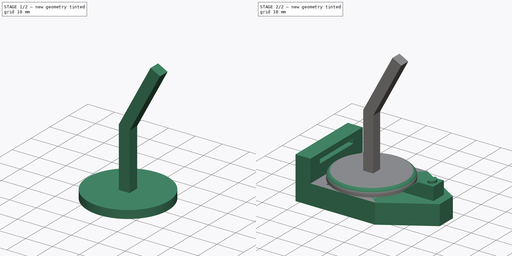
[diagram: build sequence overview — one tinted view per stage of 2, left to right]
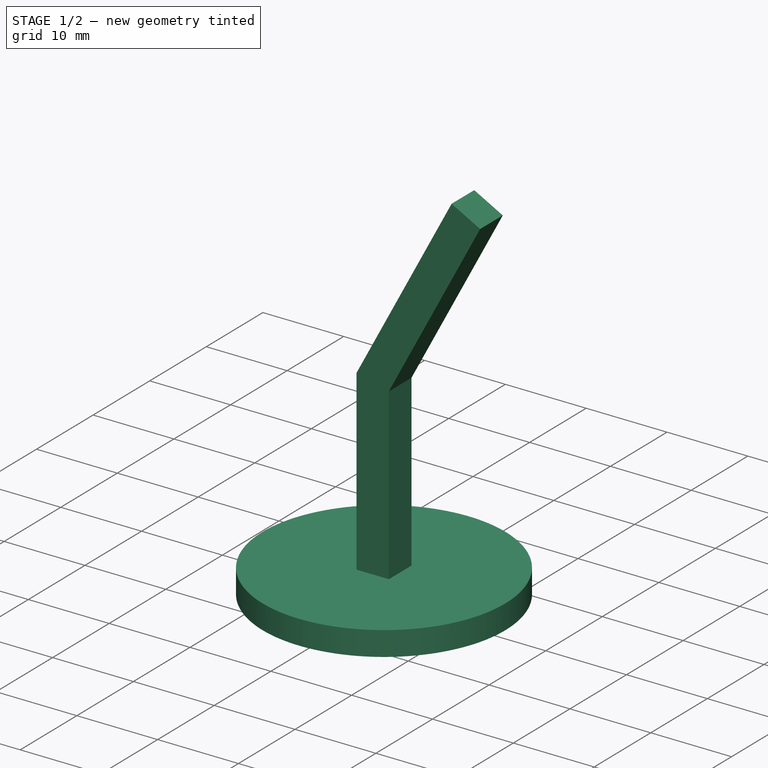
[diagram: stage 1 of 2 — iso view after this stage's code; geometry added in this stage tinted green]
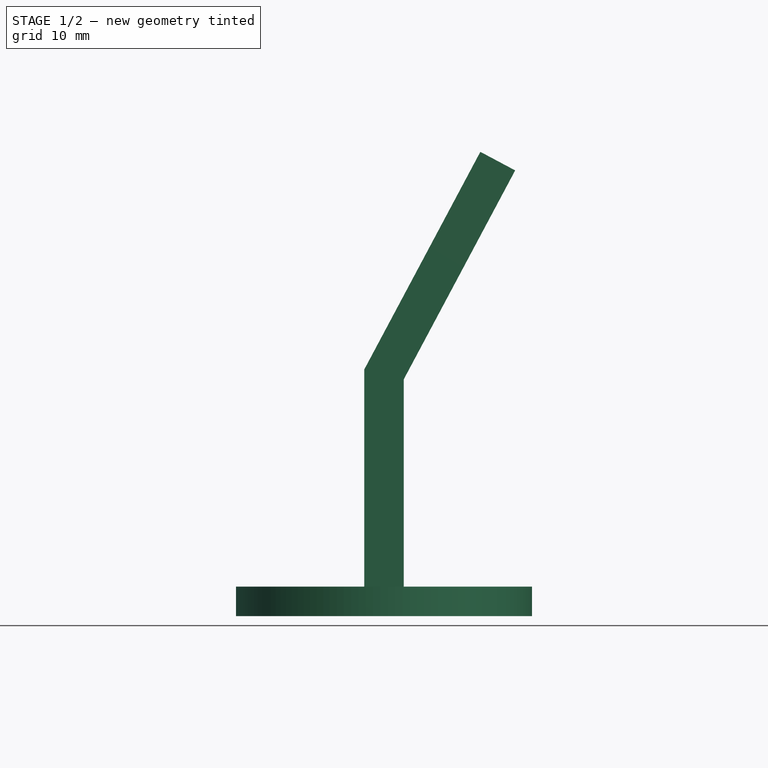
[diagram: stage 1 of 2 — front view after this stage's code; geometry added in this stage tinted green]
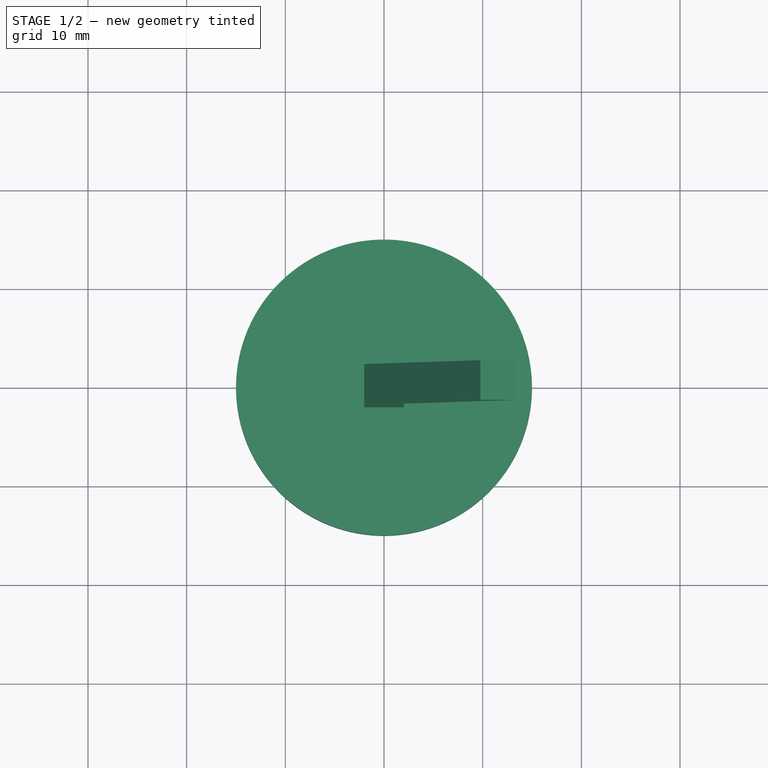
[diagram: stage 1 of 2 — top view after this stage's code; geometry added in this stage tinted green]
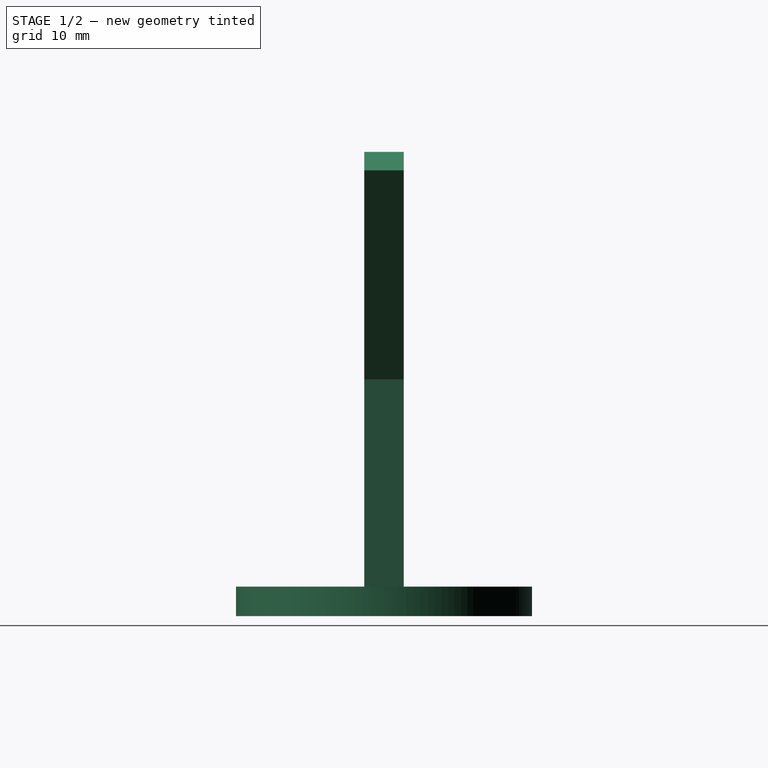
[diagram: stage 1 of 2 — right view after this stage's code; geometry added in this stage tinted green]
FCSTD DOCUMENT  (FreeCAD 0.19R24276 (Git))
Label: programming_case
License: All rights reserved
LicenseURL: http://en.wikipedia.org/wiki/All_rights_reserved
objects: Part::Feature×25, App::Part×25, Sketcher::SketchObject×10, PartDesign::Pad×6, PartDesign::Pocket×4, PartDesign::Body×2, PartDesign::Fillet×1, PartDesign::Chamfer×1
note: 61 computed .brp shape members not serialized (recipe doc carries the construction recipe); baked Part::Feature solids carry a one-line shape summary decoded from their .brp

FEATURE [Sketcher::SketchObject] Sketch
  FullyConstrained = false
  MapMode = 5
  Support = -> [XY_Plane]
  sketch-geometry (7):
    g0: LineSegment StartX=-20.1 StartY=15 StartZ=0 EndX=11.9 EndY=15 EndZ=0
    g1: LineSegment StartX=11.9 StartY=-15 StartZ=0 EndX=-20.1 EndY=-15 EndZ=0
    g2: LineSegment StartX=-20.1 StartY=-15 StartZ=0 EndX=-20.1 EndY=15 EndZ=0
    g3: Circle CenterX=-6.25 CenterY=0 CenterZ=0 NormalX=0 NormalY=0 NormalZ=1 AngleXU=0 Radius=1.5
    g4: LineSegment StartX=11.9 StartY=15 StartZ=0 EndX=30 EndY=3.75 EndZ=0
    g5: LineSegment StartX=30 StartY=3.75 StartZ=0 EndX=30 EndY=-3.75 EndZ=0
    g6: LineSegment StartX=30 StartY=-3.75 StartZ=0 EndX=11.9 EndY=-15 EndZ=0
  constraints (19):
    c: Coincident(g1,g2)
    c: Coincident(g2,g0)
    c: Horizontal(g0)
    c: Horizontal(g1)
    c: Vertical(g2)
    c: Distance(g2) = 30
    c: DistanceY(g-1,g0) = 15
    c: PointOnObject(g3,g-1)
    c: Radius(g3) = 1.5
    c: DistanceX(g3,g-1) = 6.25
    c: Distance(g0) = 32
    c: DistanceX(g1,g-1) = 20.1
    c: Coincident(g0,g4)
    c: Coincident(g4,g5)
    c: Vertical(g5)
    c: Coincident(g5,g6)
    c: Distance(g5) = 7.5
    c: DistanceY(g5,g-1) = 3.75
    c: DistanceX(g-1,g4) = 30
FEATURE [Part::Feature] Part__Feature  label="SOLID"
  shape: bbox 2 x 5 x 2 mm, 20 faces (baked)
FEATURE [App::Part] p70_1010045  label="p70-1010045"
  Group = -> [Part__Feature]
  Origin = -> Origin001
  Placement = pos=(-4.39,4.4,1.65) rot=(1,0,0;1.5708rad)
FEATURE [Part::Feature] Part__Feature001  label="SOLID001"
  shape: bbox 2 x 5 x 2 mm, 20 faces (baked)
FEATURE [App::Part] p70_1010045001  label="p70-1010046"
  Group = -> [Part__Feature001]
  Origin = -> Origin002
  Placement = pos=(0.69,4.4,1.65) rot=(1,0,0;1.5708rad)
FEATURE [Part::Feature] Part__Feature002  label="SOLID002"
  shape: bbox 2 x 5 x 2 mm, 20 faces (baked)
FEATURE [App::Part] p70_1010045002  label="p70-1010047"
  Group = -> [Part__Feature002]
  Origin = -> Origin003
  Placement = pos=(-1.85,4.4,1.65) rot=(1,0,0;1.5708rad)
FEATURE [Part::Feature] Part__Feature003  label="SOLID003"
  shape: bbox 10.36 x 15.24 x 5.54 mm, 166 faces (baked)
FEATURE [App::Part] PinHeader_1x06_P2_54mm_Horizontal  label="PinHeader_1x06_P2.54mm_Horizontal"
  Group = -> [Part__Feature003]
  Origin = -> Origin004
  Placement = pos=(-6.95,8.15,1.65) rot=(0,0,1;1.5708rad)
FEATURE [Part::Feature] Part__Feature004  label="SOLID004"
  shape: bbox 10.36 x 10.16 x 5.54 mm, 112 faces (baked)
FEATURE [App::Part] PinHeader_1x04_P2_54mm_Horizontal  label="PinHeader_1x04_P2.54mm_Horizontal"
  Group = -> [Part__Feature004]
  Origin = -> Origin005
  Placement = pos=(5.77,-8.15,1.65) rot=(0,0,-1;1.5708rad)
FEATURE [Part::Feature] Part__Feature005  label="SOLID005"
  shape: bbox 2 x 5 x 2 mm, 20 faces (baked)
FEATURE [App::Part] p70_1010045003  label="p70-1010048"
  Group = -> [Part__Feature005]
  Origin = -> Origin006
  Placement = pos=(0.7,-4.4,1.65) rot=(1,0,0;1.5708rad)
FEATURE [Part::Feature] Part__Feature006  label="SOLID006"
  shape: bbox 2 x 5 x 2 mm, 20 faces (baked)
FEATURE [App::Part] p70_1010045004  label="p70-1010049"
  Group = -> [Part__Feature006]
  Origin = -> Origin007
  Placement = pos=(3.24,-4.4,1.65) rot=(1,0,0;1.5708rad)
FEATURE [Part::Feature] Part__Feature007  label="SOLID007"
  shape: bbox 2 x 5 x 2 mm, 20 faces (baked)
FEATURE [App::Part] p70_1010045005  label="p70-1010050"
  Group = -> [Part__Feature007]
  Origin = -> Origin008
  Placement = pos=(5.77,-4.4,1.65) rot=(1,0,0;1.5708rad)
FEATURE [Part::Feature] Part__Feature008  label="SOLID008"
  shape: bbox 2 x 5 x 2 mm, 20 faces (baked)
FEATURE [App::Part] p70_1010045006  label="p70-1010051"
  Group = -> [Part__Feature008]
  Origin = -> Origin009
  Placement = pos=(5.77,4.4,1.65) rot=(1,0,0;1.5708rad)
FEATURE [Part::Feature] Part__Feature009  label="SOLID009"
  shape: bbox 2 x 5 x 2 mm, 20 faces (baked)
FEATURE [App::Part] p70_1010045007  label="p70-1010052"
  Group = -> [Part__Feature009]
  Origin = -> Origin010
  Placement = pos=(3.23,4.4,1.65) rot=(1,0,0;1.5708rad)
FEATURE [Part::Feature] Part__Feature010  label="nfc_sense_prgramming PCB"
  shape: bbox 18.5 x 24.8 x 1.6 mm, 17 faces (baked)
FEATURE [App::Part] nfc_sense_prgramming_1  label="nfc_sense_prgramming 1"
  Group = -> [p70_1010045,p70_1010045001,p70_1010045002,PinHeader_1x06_P2_54mm_Horizontal,PinHeader_1x04_P2_54mm_Horizontal,p70_1010045003,p70_1010045004,p70_1010045005,p70_1010045006,p70_1010045007,Part__Feature010]
  Origin = -> Origin011
  Placement = pos=(0,0,-0.8) rot=(0,0,1;0rad)
FEATURE [PartDesign::Pad] Pad  label="base"
  Direction = (1,1,1)
  Length = 8
  Length2 = 100
  Profile = -> Sketch
  Reversed = true
  Type = 0
FEATURE [Sketcher::SketchObject] Sketch001
  FullyConstrained = true
  MapMode = 5
  sketch-geometry (4):
    g0: LineSegment StartX=-9.45 StartY=12.6 StartZ=0 EndX=9.45 EndY=12.6 EndZ=0
    g1: LineSegment StartX=9.45 StartY=12.6 StartZ=0 EndX=9.45 EndY=-12.6 EndZ=0
    g2: LineSegment StartX=9.45 StartY=-12.6 StartZ=0 EndX=-9.45 EndY=-12.6 EndZ=0
    g3: LineSegment StartX=-9.45 StartY=-12.6 StartZ=0 EndX=-9.45 EndY=12.6 EndZ=0
  constraints (12):
    c: Coincident(g0,g1)
    c: Coincident(g1,g2)
    c: Coincident(g2,g3)
    c: Coincident(g3,g0)
    c: Horizontal(g0)
    c: Horizontal(g2)
    c: Vertical(g1)
    c: Vertical(g3)
    c: Distance(g2) = 18.9
    c: Distance(g1) = 25.2
    c: DistanceX(g2,g-1) = 9.45
    c: DistanceY(g-1,g0) = 12.6
FEATURE [PartDesign::Pocket] Pocket  label="PCB_insert"
  BaseFeature = -> Pad
  Length = 0.8
  Length2 = 100
  Profile = -> Sketch001
  Type = 0
FEATURE [Part::Feature] Part__Feature011  label="SOLID010"
  shape: bbox 1.6 x 0.8 x 0.8 mm, 28 faces (baked)
FEATURE [App::Part] C_0603_1608Metric
  Group = -> [Part__Feature011]
  Origin = -> Origin012
  Placement = pos=(2.5,0.923832,1.65) rot=(0,0,1;0rad)
FEATURE [Part::Feature] Part__Feature012  label="SOLID011"
  shape: bbox 3.2 x 1.6 x 1.6 mm, 28 faces (baked)
FEATURE [App::Part] C_1206_3216Metric
  Group = -> [Part__Feature012]
  Origin = -> Origin013
  Placement = pos=(-2,-5.12617,1.65) rot=(0,0,1;0rad)
FEATURE [Part::Feature] Part__Feature013  label="SOLID012"
  shape: bbox 1.6 x 0.8 x 0.8 mm, 28 faces (baked)
FEATURE [App::Part] C_0603_1608Metric001
  Group = -> [Part__Feature013]
  Origin = -> Origin014
  Placement = pos=(-2,-2.32617,1.65) rot=(0,0,1;1.5708rad)
FEATURE [Part::Feature] Part__Feature014  label="SOLID013"
  shape: bbox 1.6 x 0.8 x 0.8 mm, 28 faces (baked)
FEATURE [App::Part] C_0603_1608Metric002
  Group = -> [Part__Feature014]
  Origin = -> Origin015
  Placement = pos=(-0.399999,-2.32617,1.65) rot=(0,0,1;1.5708rad)
FEATURE [Part::Feature] Part__Feature015  label="SOLID014"
  shape: bbox 3 x 3 x 0.6 mm, 109 faces (baked)
FEATURE [App::Part] QFN_16_1EP_3x3mm_P0_5mm_EP2_7x2_7mm_ThermalVias  label="QFN-16-1EP_3x3mm_P0.5mm_EP2.7x2.7mm_ThermalVias"
  Group = -> [Part__Feature015]
  Origin = -> Origin016
  Placement = pos=(3,-3.28796,1.65) rot=(0,0,1;1.5708rad)
FEATURE [Part::Feature] Part__Feature016  label="SOLID015"
  shape: bbox 3 x 3 x 0.6 mm, 134 faces (baked)
FEATURE [App::Part] QFN_20_1EP_3x3mm_P0_45mm_EP1_6x1_6mm  label="QFN-20-1EP_3x3mm_P0.45mm_EP1.6x1.6mm"
  Group = -> [Part__Feature016]
  Origin = -> Origin017
  Placement = pos=(-2.15,3.07383,1.65) rot=(0,0,1;0rad)
FEATURE [Part::Feature] Part__Feature017  label="SOLID016"
  shape: bbox 1.6 x 0.8 x 0.8 mm, 28 faces (baked)
FEATURE [App::Part] C_0603_1608Metric003
  Group = -> [Part__Feature017]
  Origin = -> Origin018
  Placement = pos=(-3.6,-2.32617,1.65) rot=(0,0,1;1.5708rad)
FEATURE [Part::Feature] Part__Feature018  label="SOLID017"
  shape: bbox 1.6 x 0.87 x 0.66 mm, 39 faces (baked)
FEATURE [App::Part] D_0603_1608Metric
  Group = -> [Part__Feature018]
  Origin = -> Origin019
  Placement = pos=(0.750001,-8.17617,1.65) rot=(0,0,-1;1.5708rad)
FEATURE [Part::Feature] Part__Feature019  label="SOLID018"
  shape: bbox 1.6 x 0.8 x 0.45 mm, 26 faces (baked)
FEATURE [App::Part] R_0603_1608Metric
  Group = -> [Part__Feature019]
  Origin = -> Origin020
  Placement = pos=(2.5,4.87383,1.65) rot=(0,0,1;0rad)
FEATURE [Part::Feature] Part__Feature020  label="SOLID019"
  shape: bbox 1 x 0.5 x 0.5 mm, 28 faces (baked)
FEATURE [App::Part] C_0402_1005Metric
  Group = -> [Part__Feature020]
  Origin = -> Origin021
  Placement = pos=(1e-06,12.9738,1.65) rot=(0,0,1;3.14159rad)
FEATURE [Part::Feature] Part__Feature021  label="SOLID020"
  shape: bbox 1 x 0.5 x 0.5 mm, 28 faces (baked)
FEATURE [App::Part] C_0402_1005Metric001
  Group = -> [Part__Feature021]
  Origin = -> Origin022
  Placement = pos=(2.5,-6.62617,1.65) rot=(0,0,1;3.14159rad)
FEATURE [Part::Feature] Part__Feature022  label="SOLID021"
  shape: bbox 1.6 x 0.8 x 0.45 mm, 26 faces (baked)
FEATURE [App::Part] R_0603_1608Metric001
  Group = -> [Part__Feature022]
  Origin = -> Origin023
  Placement = pos=(2.5,2.52383,1.65) rot=(0,0,1;0rad)
FEATURE [Part::Feature] Part__Feature023  label="SOLID022"
  shape: bbox 1.6 x 0.87 x 0.66 mm, 39 faces (baked)
FEATURE [App::Part] D_0603_1608Metric001
  Group = -> [Part__Feature023]
  Origin = -> Origin024
  Placement = pos=(-0.899999,-8.17617,1.65) rot=(0,0,-1;1.5708rad)
FEATURE [Part::Feature] Part__Feature024  label="nfc_sense PCB"
  shape: bbox 18.6 x 43.15 x 1.6 mm, 19 faces (baked)
FEATURE [App::Part] nfc_sense_1  label="nfc_sense 1"
  Group = -> [C_0603_1608Metric,C_1206_3216Metric,C_0603_1608Metric001,C_0603_1608Metric002,QFN_16_1EP_3x3mm_P0_5mm_EP2_7x2_7mm_ThermalVias,QFN_20_1EP_3x3mm_P0_45mm_EP1_6x1_6mm,C_0603_1608Metric003,D_0603_1608Metric,R_0603_1608Metric,C_0402_1005Metric,C_0402_1005Metric001,R_0603_1608Metric001,D_0603_1608Metric001,Part__Feature024]
  Origin = -> Origin025
  Placement = pos=(6.15,-1.4e-15,5.3) rot=(0,0,-1;4.71239rad)
FEATURE [Sketcher::SketchObject] Sketch005
  FullyConstrained = true
  MapMode = 5
  Placement = pos=(0,0,-8) rot=(1,0,0;3.14159rad)
  sketch-geometry (7):
    g0: LineSegment StartX=-4.63342 StartY=2.8 StartZ=0 EndX=-7.86658 EndY=2.8 EndZ=0
    g1: LineSegment StartX=-7.86658 StartY=2.8 StartZ=0 EndX=-9.48316 EndY=0 EndZ=0
    g2: LineSegment StartX=-9.48316 StartY=0 StartZ=0 EndX=-7.86658 EndY=-2.8 EndZ=0
    g3: LineSegment StartX=-7.86658 StartY=-2.8 StartZ=0 EndX=-4.63342 EndY=-2.8 EndZ=0
    g4: LineSegment StartX=-4.63342 StartY=-2.8 StartZ=0 EndX=-3.01684 EndY=-4e-16 EndZ=0
    g5: LineSegment StartX=-3.01684 StartY=-4e-16 StartZ=0 EndX=-4.63342 EndY=2.8 EndZ=0
    g6: Circle CenterX=-6.25 CenterY=0 CenterZ=0 NormalX=0 NormalY=0 NormalZ=1 AngleXU=0 Radius=3.23316
  constraints (17):
    c: Coincident(g0,g1)
    c: Coincident(g1,g2)
    c: Coincident(g2,g3)
    c: Coincident(g3,g4)
    c: Coincident(g4,g5)
    c: Coincident(g5,g0)
    c: Equal(g0, g1-g5) x5
    c: PointOnObject(g0,g6)
    c: PointOnObject(g1,g6)
    c: PointOnObject(g2,g6)
    c: PointOnObject(g3,g6)
    c: PointOnObject(g4,g6)
    c: PointOnObject(g5,g6)
    c: PointOnObject(g6,g-1)
    c: Horizontal(g0)
    c: DistanceY(g3,g0) = 5.6
    c: DistanceX(g6,g-1) = 6.25
FEATURE [Sketcher::SketchObject] Sketch006
  FullyConstrained = true
  MapMode = 5
  Placement = pos=(0,0,0) rot=(1,0,0;1.5708rad)
  Support = -> [XZ_Plane]
  sketch-geometry (4):
    g0: LineSegment StartX=13.9 StartY=0 StartZ=0 EndX=20.9 EndY=5.25 EndZ=0
    g1: LineSegment StartX=20.9 StartY=5.25 StartZ=0 EndX=26.9 EndY=5.25 EndZ=0
    g2: LineSegment StartX=26.9 StartY=5.25 StartZ=0 EndX=26.9 EndY=0 EndZ=0
    g3: LineSegment StartX=26.9 StartY=0 StartZ=0 EndX=13.9 EndY=0 EndZ=0
  constraints (12):
    c: PointOnObject(g0,g-1)
    c: Coincident(g0,g1)
    c: Horizontal(g1)
    c: Coincident(g1,g2)
    c: PointOnObject(g2,g-1)
    c: Vertical(g2)
    c: Coincident(g2,g3)
    c: Coincident(g3,g0)
    c: Distance(g2) = 5.25
    c: Distance(g1) = 6
    c: Distance(g3) = 13
    c: DistanceX(g-1,g0) = 13.9
FEATURE [Sketcher::SketchObject] Sketch008
  FullyConstrained = true
  MapMode = 5
  Support = -> [XY_Plane026]
  sketch-geometry (1):
    g0: Circle CenterX=0 CenterY=0 CenterZ=0 NormalX=0 NormalY=0 NormalZ=1 AngleXU=0 Radius=15
  constraints (2):
    c: Coincident(g0,g-1)
    c: Radius(g0) = 15
FEATURE [PartDesign::Pad] Pad004
  Direction = (1,1,1)
  Length = 3
  Length2 = 100
  Profile = -> Sketch008
  Type = 0
FEATURE [Sketcher::SketchObject] Sketch009
  FullyConstrained = true
  MapMode = 5
  Placement = pos=(0,0,0) rot=(1,0,0;1.5708rad)
  Support = -> [XZ_Plane026]
  sketch-geometry (6):
    g0: LineSegment StartX=-2 StartY=0 StartZ=0 EndX=2 EndY=0 EndZ=0
    g1: LineSegment StartX=2 StartY=0 StartZ=0 EndX=2 EndY=24 EndZ=0
    g2: LineSegment StartX=-2 StartY=25 StartZ=0 EndX=-2 EndY=0 EndZ=0
    g3: LineSegment StartX=-2 StartY=25 StartZ=0 EndX=9.76471 EndY=47.0588 EndZ=0
    g4: LineSegment StartX=9.76471 StartY=47.0588 StartZ=0 EndX=13.2941 EndY=45.1765 EndZ=0
    g5: LineSegment StartX=13.2941 StartY=45.1765 StartZ=0 EndX=2 EndY=24 EndZ=0
  constraints (18):
    c: Coincident(g0,g1)
    c: Coincident(g2,g0)
    c: Horizontal(g0)
    c: Vertical(g1)
    c: Vertical(g2)
    c: PointOnObject(g0,g-1)
    c: Distance(g2) = 25
    c: DistanceX(g0,g-1) = 2
    c: Distance(g0) = 4
    c: Coincident(g2,g3)
    c: Coincident(g3,g4)
    c: Coincident(g4,g5)
    c: Distance(g4) = 4
    c: Coincident(g5,g1)
    c: Parallel(g3,g5)
    c: Distance(g1) = 24
    c: Angle(g4,g5) = 1.5708
    c: Distance(g3) = 25
FEATURE [PartDesign::Pad] Pad005
  BaseFeature = -> Pad004
  Direction = (1,1,1)
  Length = 2
  Length2 = 2
  Profile = -> Sketch009
  Type = 4
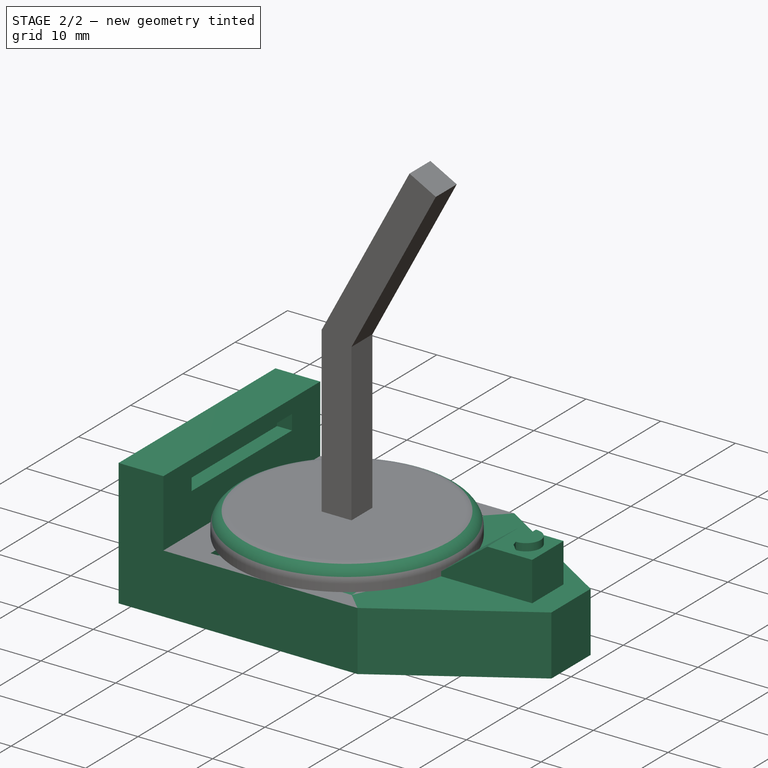
[diagram: stage 2 of 2 — iso view after this stage's code; geometry added in this stage tinted green]
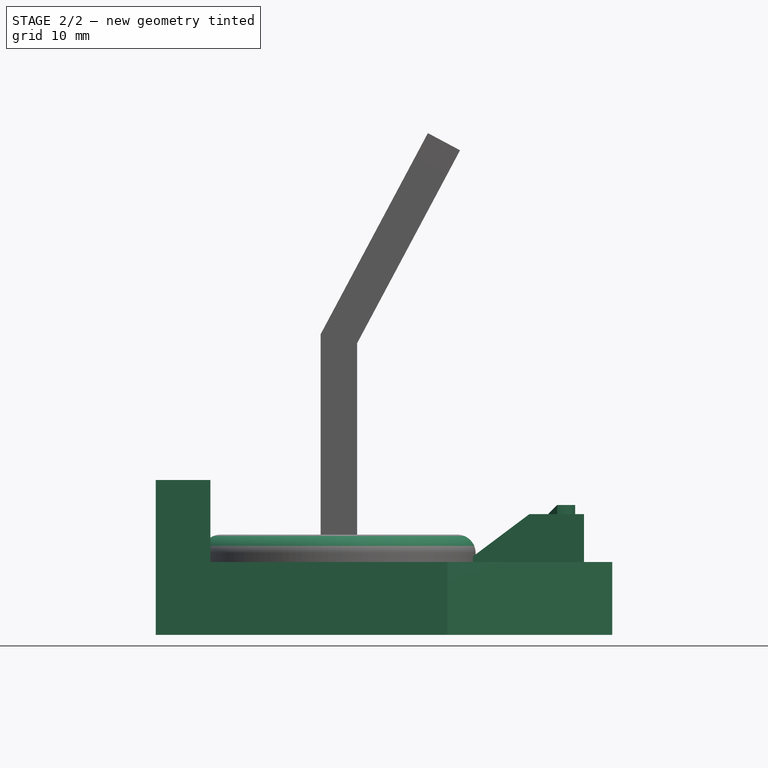
[diagram: stage 2 of 2 — front view after this stage's code; geometry added in this stage tinted green]
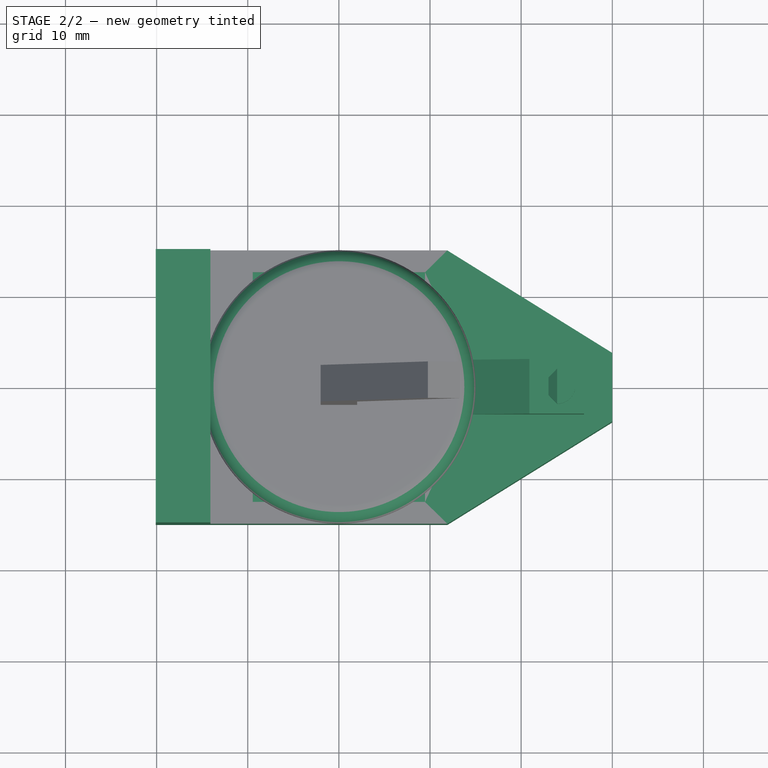
[diagram: stage 2 of 2 — top view after this stage's code; geometry added in this stage tinted green]
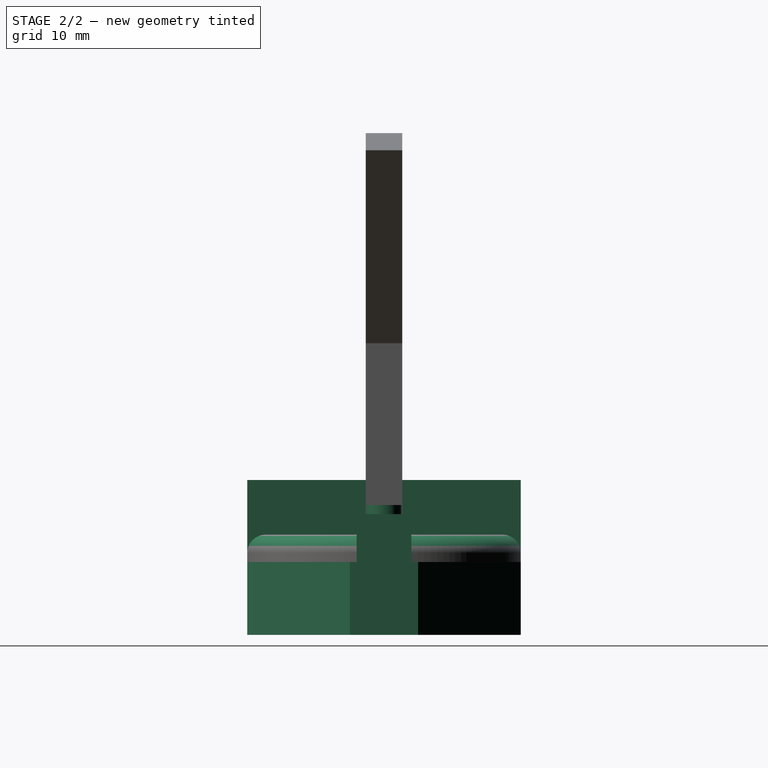
[diagram: stage 2 of 2 — right view after this stage's code; geometry added in this stage tinted green]
FEATURE [PartDesign::Fillet] Fillet
  Base = -> Pad005 [Edge3]
  BaseFeature = -> Pad005
  Radius = 2
  SupportTransform = false
FEATURE [PartDesign::Body] Body001  label="holder"
  Group = -> [Sketch008,Pad004,Sketch009,Pad005,Fillet]
  Origin = -> Origin026
  Tip = -> Fillet
FEATURE [PartDesign::Body] Body
  Group = -> [Sketch,Pad,Sketch001,Pocket,Sketch002,Pocket001,Sketch003,Pad001,Sketch004,Sketch005,Pocket002,Pocket003,Sketch006,Pad002,Sketch007,Pad003,Chamfer]
  Origin = -> Origin
  Tip = -> Chamfer
FEATURE [Sketcher::SketchObject] Sketch002
  FullyConstrained = false
  MapMode = 5
  Placement = pos=(0,0,-0.8) rot=(0,0,1;0rad)
  Support = -> [Pad003]
  sketch-geometry (8):
    g0: LineSegment StartX=-8.03404 StartY=9.33378 StartZ=0 EndX=6.96596 EndY=9.33378 EndZ=0
    g1: LineSegment StartX=6.96596 StartY=9.33378 StartZ=0 EndX=6.96596 EndY=6.83378 EndZ=0
    g2: LineSegment StartX=6.96596 StartY=6.83378 StartZ=0 EndX=-8.03404 EndY=6.83378 EndZ=0
    g3: LineSegment StartX=-8.03404 StartY=6.83378 StartZ=0 EndX=-8.03404 EndY=9.33378 EndZ=0
    g4: LineSegment StartX=-3.10929 StartY=-6.90324 StartZ=0 EndX=7.29071 EndY=-6.90324 EndZ=0
    g5: LineSegment StartX=7.29071 StartY=-6.90324 StartZ=0 EndX=7.29071 EndY=-9.40324 EndZ=0
    g6: LineSegment StartX=7.29071 StartY=-9.40324 StartZ=0 EndX=-3.10929 EndY=-9.40324 EndZ=0
    g7: LineSegment StartX=-3.10929 StartY=-9.40324 StartZ=0 EndX=-3.10929 EndY=-6.90324 EndZ=0
  constraints (20):
    c: Coincident(g0,g1)
    c: Coincident(g1,g2)
    c: Coincident(g2,g3)
    c: Coincident(g3,g0)
    c: Horizontal(g0)
    c: Horizontal(g2)
    c: Vertical(g1)
    c: Vertical(g3)
    c: Coincident(g4,g5)
    c: Coincident(g5,g6)
    c: Coincident(g6,g7)
    c: Coincident(g7,g4)
    c: Horizontal(g4)
    c: Horizontal(g6)
    c: Vertical(g5)
    c: Vertical(g7)
    c: Distance(g2) = 15
    c: Distance(g4) = 10.4
    c: Distance(g3) = 2.5
    c: Distance(g7) = 2.5
FEATURE [PartDesign::Pocket] Pocket001  label="pin_space"
  BaseFeature = -> Pocket
  Length = 3
  Length2 = 100
  Profile = -> Sketch002
  Type = 0
FEATURE [Sketcher::SketchObject] Sketch003
  FullyConstrained = true
  MapMode = 5
  Support = -> [Pocket001]
  sketch-geometry (4):
    g0: LineSegment StartX=-20.1 StartY=15 StartZ=0 EndX=-14.1 EndY=15 EndZ=0
    g1: LineSegment StartX=-14.1 StartY=15 StartZ=0 EndX=-14.1 EndY=-15 EndZ=0
    g2: LineSegment StartX=-14.1 StartY=-15 StartZ=0 EndX=-20.1 EndY=-15 EndZ=0
    g3: LineSegment StartX=-20.1 StartY=-15 StartZ=0 EndX=-20.1 EndY=15 EndZ=0
  constraints (12):
    c: Coincident(g0,g1)
    c: Coincident(g1,g2)
    c: Coincident(g2,g3)
    c: Coincident(g3,g0)
    c: Horizontal(g0)
    c: Horizontal(g2)
    c: Vertical(g1)
    c: Vertical(g3)
    c: Distance(g2) = 6
    c: Distance(g3) = 30
    c: DistanceX(g1,g-1) = 14.1
    c: DistanceY(g-1,g0) = 15
FEATURE [PartDesign::Pad] Pad001  label="holder_tower"
  BaseFeature = -> Pocket001
  Direction = (1,1,1)
  Length = 9
  Length2 = 100
  Profile = -> Sketch003
  Type = 0
FEATURE [Sketcher::SketchObject] Sketch004
  FullyConstrained = true
  MapMode = 5
  Placement = pos=(-14.1,0,0) rot=(0.57735,0.57735,0.57735;2.0944rad)
  Support = -> [Pad001]
  sketch-geometry (4):
    g0: LineSegment StartX=-9.6 StartY=7.14 StartZ=0 EndX=9.6 EndY=7.14 EndZ=0
    g1: LineSegment StartX=9.6 StartY=7.14 StartZ=0 EndX=9.6 EndY=5.14 EndZ=0
    g2: LineSegment StartX=9.6 StartY=5.14 StartZ=0 EndX=-9.6 EndY=5.14 EndZ=0
    g3: LineSegment StartX=-9.6 StartY=5.14 StartZ=0 EndX=-9.6 EndY=7.14 EndZ=0
  constraints (12):
    c: Coincident(g0,g1)
    c: Coincident(g1,g2)
    c: Coincident(g2,g3)
    c: Coincident(g3,g0)
    c: Horizontal(g0)
    c: Horizontal(g2)
    c: Vertical(g1)
    c: Vertical(g3)
    c: Distance(g1) = 2
    c: Distance(g0) = 19.2
    c: DistanceX(g2,g-1) = 9.6
    c: DistanceY(g-1,g2) = 5.14
FEATURE [PartDesign::Pocket] Pocket002  label="PCB_slot"
  BaseFeature = -> Pad001
  Length = 2
  Length2 = 100
  Profile = -> Sketch004
  Type = 0
FEATURE [PartDesign::Pocket] Pocket003
  BaseFeature = -> Pocket002
  Length = 3
  Length2 = 100
  Profile = -> Sketch005
  Type = 0
FEATURE [PartDesign::Pad] Pad002
  BaseFeature = -> Pocket003
  Direction = (1,1,1)
  Length = 3
  Length2 = 3
  Profile = -> Sketch006
  Type = 4
FEATURE [Sketcher::SketchObject] Sketch007
  FullyConstrained = true
  MapMode = 5
  Placement = pos=(0,-1.2e-15,5.25) rot=(0,0,1;0rad)
  Support = -> [Pad002]
  sketch-geometry (4):
    g0: ArcOfCircle CenterX=24 CenterY=0 CenterZ=0 NormalX=0 NormalY=0 NormalZ=1 AngleXU=0 Radius=1.925 StartAngle=4.71239 EndAngle=7.85398
    g1: LineSegment StartX=24 StartY=1.925 StartZ=0 EndX=23 EndY=1.925 EndZ=0
    g2: LineSegment StartX=23 StartY=1.925 StartZ=0 EndX=23 EndY=-1.925 EndZ=0
    g3: LineSegment StartX=23 StartY=-1.925 StartZ=0 EndX=24 EndY=-1.925 EndZ=0
  constraints (12):
    c: Horizontal(g0,g-1)
    c: DistanceX(g-1,g0) = 24
    c: Tangent(g0,g1) = -1.5708
    c: Coincident(g1,g2)
    c: Vertical(g2)
    c: Coincident(g2,g3)
    c: Coincident(g3,g0)
    c: Horizontal(g3)
    c: Distance(g2) = 3.85
    c: Distance(g3) = 1
    c: Equal(g1,g3)
    c: Horizontal(g1)
FEATURE [PartDesign::Pad] Pad003
  BaseFeature = -> Pad002
  Direction = (1,1,1)
  Length = 1
  Length2 = 100
  Profile = -> Sketch007
  Type = 0
FEATURE [PartDesign::Chamfer] Chamfer
  Angle = 45
  Base = -> Pad003 [Edge104,Edge103,Edge101]
  BaseFeature = -> Pad003
  ChamferType = 0
  FlipDirection = false
  Size = 0.95
  Size2 = 1
  SupportTransform = false
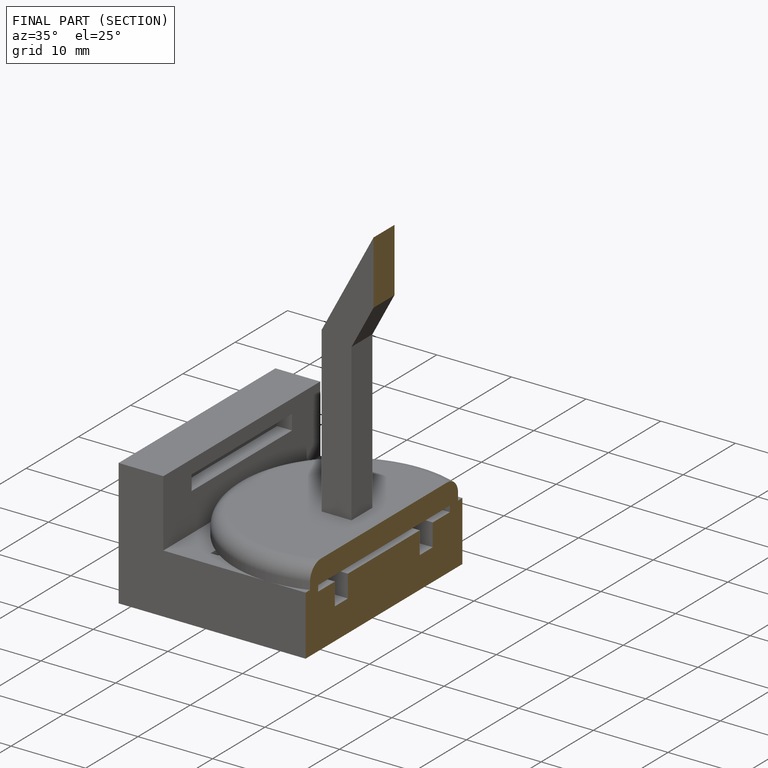
[diagram: finished part — half-section view (interior)]
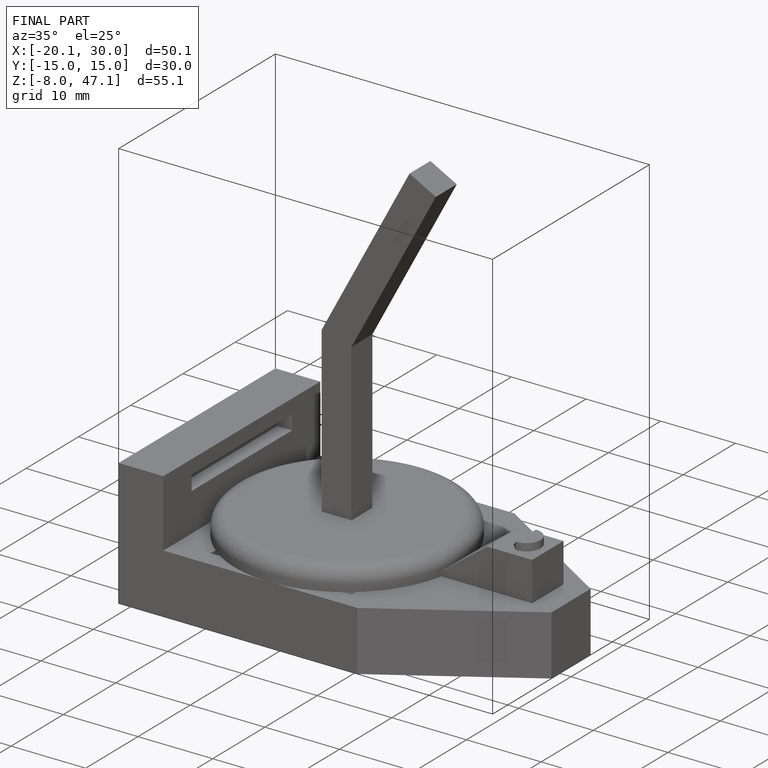
[diagram: finished part — iso view with bounding-box wireframe]
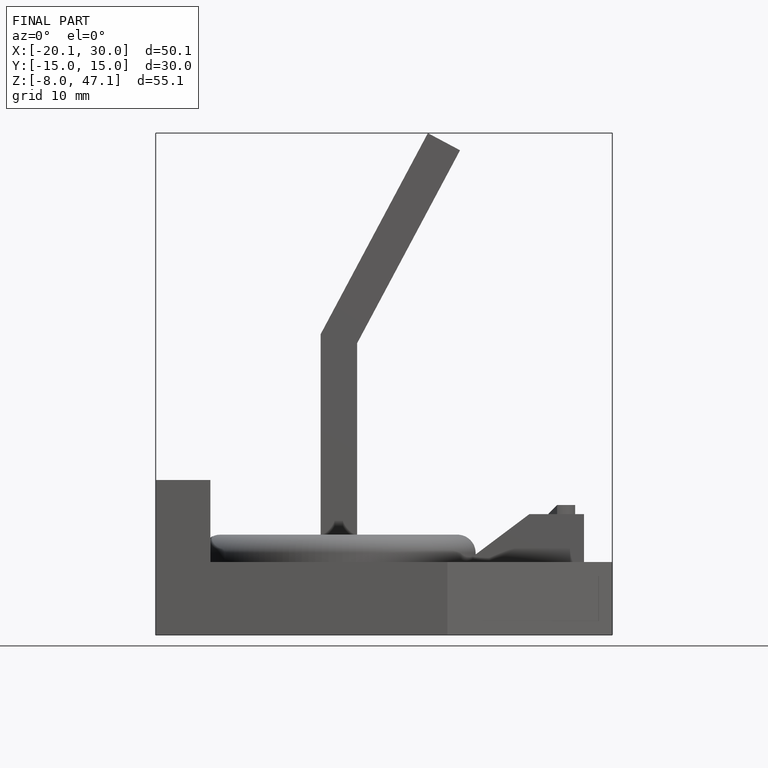
[diagram: finished part — front view with bounding-box wireframe]
